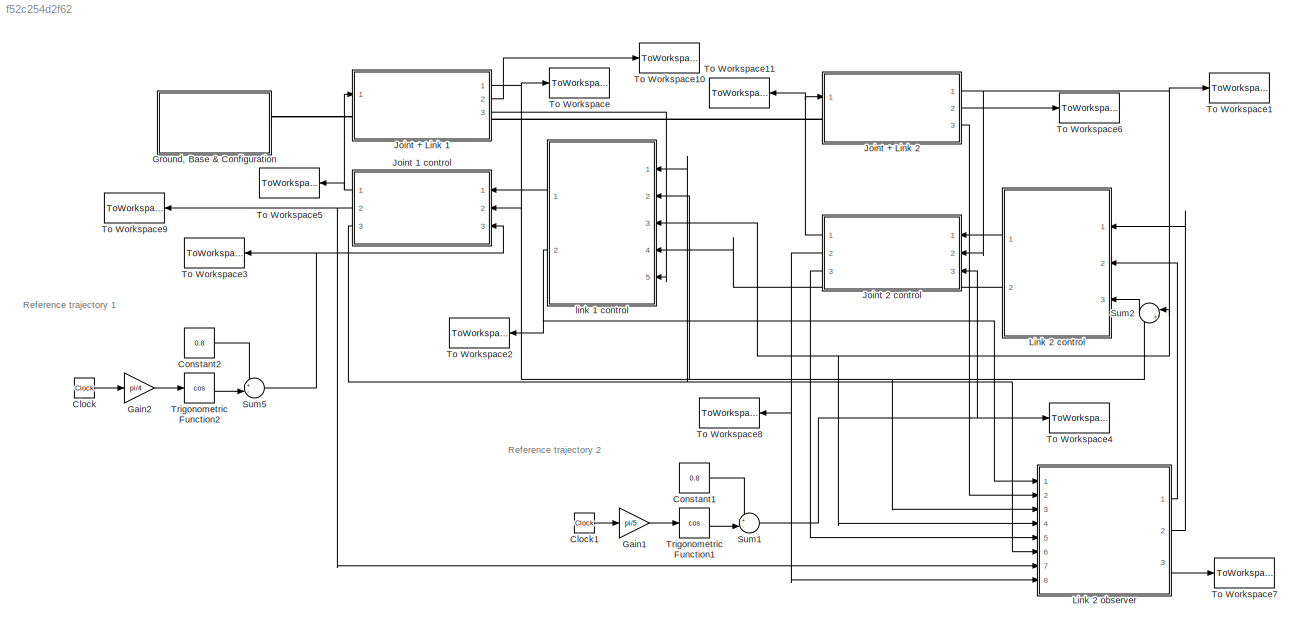
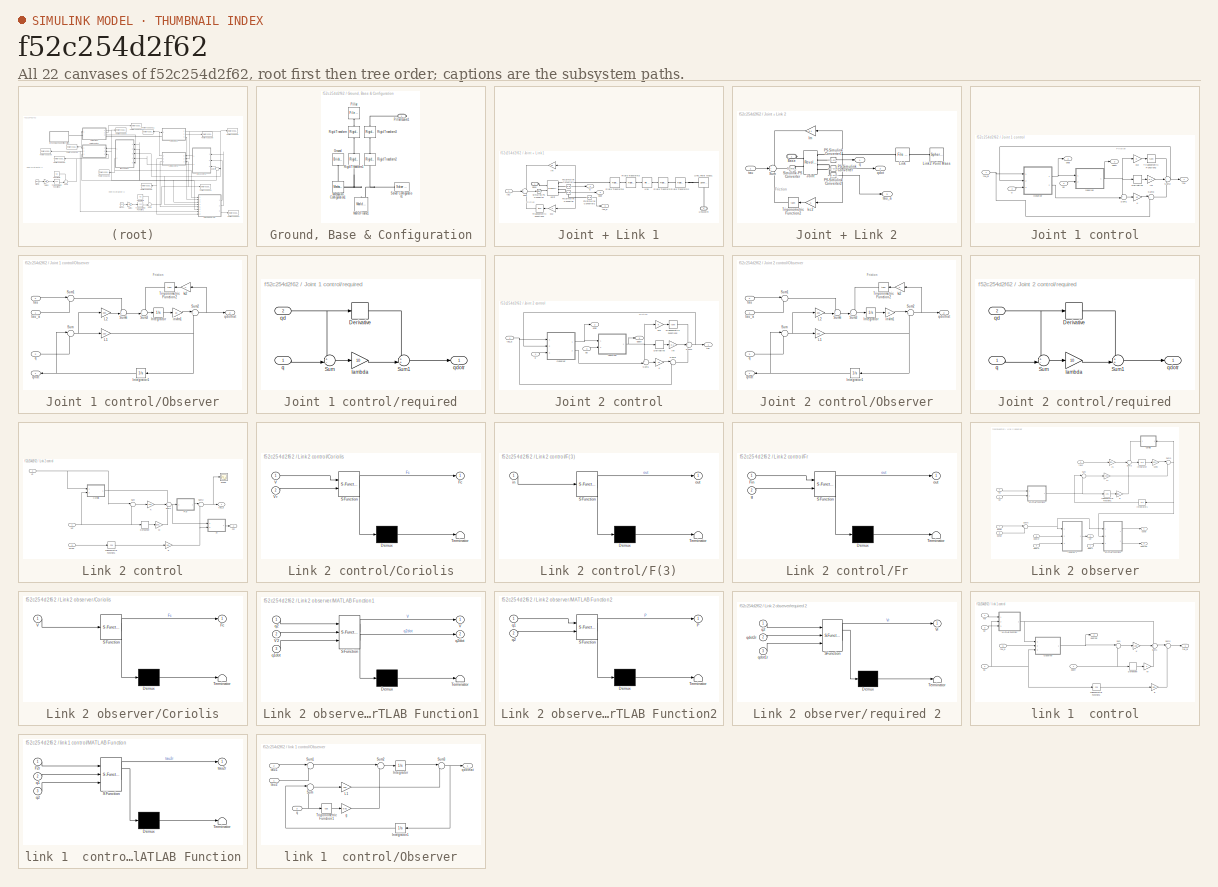
[diagram: thumbnail index - all 22 canvases of the model, root first then tree order]
MODEL slx_f52c254d2f62
KIND model
CONFIG AbsTol = 1e-5
CONFIG EnableMultiTasking = off
CONFIG FixedStep = 0.001
CONFIG MaxStep = auto
CONFIG MinStep = auto
CONFIG RelTol = 1e-5
CONFIG SampleTimeConstraint = Unconstrained
CONFIG SolverName = ode45
CONFIG StartTime = 0.0
CONFIG StopTime = 20
BLOCK [Clock] Clock
BLOCK [Clock] Clock1
BLOCK [Constant] Constant1
  Value = 0.8
BLOCK [Constant] Constant2
  Value = 0.8
BLOCK [Gain] Gain1
  Gain = pi/5
BLOCK [Gain] Gain2
  Gain = pi/4
BLOCK [SubSystem] Ground, Base & Configuration
  Ports = [0, 0, 0, 0, 0, 0, 1]
  RequestExecContextInheritance = off
BLOCK [Reference] Ground, Base & Configuration/Ground  REF=sm_lib/Body Elements/Brick Solid
  NameLocation = left
  Ports = [0, 0, 0, 0, 0, 0, 1]
  SourceBlock = sm_lib/Body Elements/Brick Solid
  SourceProductBaseCode = MS
  SourceType = Brick Solid
BLOCK [Reference] Ground, Base & Configuration/Mechanism Configuration1  REF=sm_lib/Utilities/Mechanism
Configuration
  NameLocation = top
  Ports = [0, 0, 0, 0, 0, 0, 1]
  SourceBlock = sm_lib/Utilities/Mechanism\nConfiguration
  SourceProductBaseCode = MS
  SourceType = Mechanism\nConfiguration
BLOCK [Reference] Ground, Base & Configuration/Pillar  REF=sm_lib/Body Elements/File Solid
  NameLocation = left
  Ports = [0, 0, 0, 0, 0, 0, 1]
  SourceBlock = sm_lib/Body Elements/File Solid
  SourceProductBaseCode = MS
  SourceType = File Solid
BLOCK [PMIOPort] Ground, Base & Configuration/PillartoJoint1
  Side = Right
BLOCK [Reference] Ground, Base & Configuration/Rigid Transform  REF=sm_lib/Frames and
Transforms/Rigid
Transform
  NameLocation = right
  Ports = [0, 0, 0, 0, 0, 1, 1]
  SourceBlock = sm_lib/Frames and\nTransforms/Rigid\nTransform
  SourceProductBaseCode = MS
  SourceType = Rigid\nTransform
BLOCK [Reference] Ground, Base & Configuration/Rigid Transform1  REF=sm_lib/Frames and
Transforms/Rigid
Transform
  NameLocation = right
  Ports = [0, 0, 0, 0, 0, 1, 1]
  SourceBlock = sm_lib/Frames and\nTransforms/Rigid\nTransform
  SourceProductBaseCode = MS
  SourceType = Rigid\nTransform
BLOCK [Reference] Ground, Base & Configuration/Rigid Transform2  REF=sm_lib/Frames and
Transforms/Rigid
Transform
  NameLocation = right
  Ports = [0, 0, 0, 0, 0, 1, 1]
  SourceBlock = sm_lib/Frames and\nTransforms/Rigid\nTransform
  SourceProductBaseCode = MS
  SourceType = Rigid\nTransform
BLOCK [Reference] Ground, Base & Configuration/Rigid Transform3  REF=sm_lib/Frames and
Transforms/Rigid
Transform
  NameLocation = right
  Ports = [0, 0, 0, 0, 0, 1, 1]
  SourceBlock = sm_lib/Frames and\nTransforms/Rigid\nTransform
  SourceProductBaseCode = MS
  SourceType = Rigid\nTransform
BLOCK [Reference] Ground, Base & Configuration/Solver Configuration1  REF=nesl_utility/Solver
Configuration
  NameLocation = top
  Ports = [0, 0, 0, 0, 0, 0, 1]
  SourceBlock = nesl_utility/Solver\nConfiguration
  SourceProductBaseCode = SS
  SourceType = Solver\nConfiguration
BLOCK [Reference] Ground, Base & Configuration/World Frame1  REF=sm_lib/Frames and
Transforms/World Frame
  NameLocation = right
  Ports = [0, 0, 0, 0, 0, 0, 1]
  SourceBlock = sm_lib/Frames and\nTransforms/World Frame
  SourceProductBaseCode = MS
  SourceType = World Frame
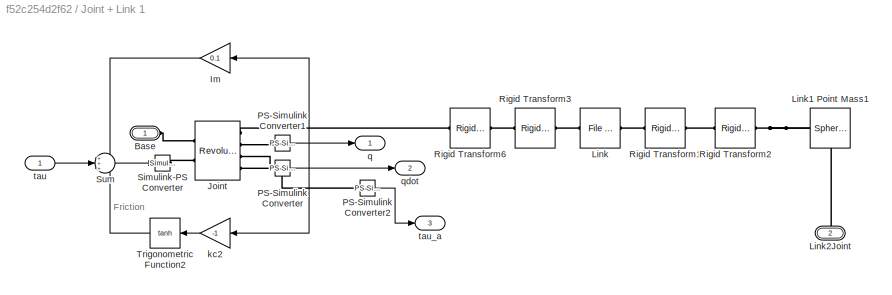
BLOCK [SubSystem] Joint + Link 1
  NameLocation = top
  Ports = [1, 3, 0, 0, 0, 1, 1]
  RequestExecContextInheritance = off
BLOCK [PMIOPort] Joint + Link 1/Base
  NameLocation = top
  Side = Left
BLOCK [Gain] Joint + Link 1/Im
  Gain = 0.1
BLOCK [Reference] Joint + Link 1/Joint  REF=sm_lib/Joints/Revolute Joint
  Ports = [0, 0, 0, 0, 0, 2, 4]
  SourceBlock = sm_lib/Joints/Revolute Joint
  SourceProductBaseCode = MS
  SourceType = Revolute Joint
BLOCK [Reference] Joint + Link 1/Link  REF=sm_lib/Body Elements/File Solid
  NameLocation = top
  Ports = [0, 0, 0, 0, 0, 1, 1]
  SourceBlock = sm_lib/Body Elements/File Solid
  SourceProductBaseCode = MS
  SourceType = File Solid
BLOCK [Reference] Joint + Link 1/Link1 Point Mass1  REF=sm_lib/Body Elements/Spherical Solid
  Ports = [0, 0, 0, 0, 0, 0, 1]
  SourceBlock = sm_lib/Body Elements/Spherical Solid
  SourceProductBaseCode = MS
  SourceType = Spherical Solid
BLOCK [PMIOPort] Joint + Link 1/Link2Joint
  Port = 2
  Side = Right
BLOCK [Reference] Joint + Link 1/PS-Simulink Converter  REF=nesl_utility/PS-Simulink
Converter
  Ports = [0, 1, 0, 0, 0, 1]
  SourceBlock = nesl_utility/PS-Simulink\nConverter
  SourceProductBaseCode = SS
  SourceType = PS-Simulink\nConverter
BLOCK [Reference] Joint + Link 1/PS-Simulink Converter1  REF=nesl_utility/PS-Simulink
Converter
  Ports = [0, 1, 0, 0, 0, 1]
  SourceBlock = nesl_utility/PS-Simulink\nConverter
  SourceProductBaseCode = SS
  SourceType = PS-Simulink\nConverter
BLOCK [Reference] Joint + Link 1/PS-Simulink Converter2  REF=nesl_utility/PS-Simulink
Converter
  Ports = [0, 1, 0, 0, 0, 1]
  SourceBlock = nesl_utility/PS-Simulink\nConverter
  SourceProductBaseCode = SS
  SourceType = PS-Simulink\nConverter
BLOCK [Reference] Joint + Link 1/Rigid Transform1  REF=sm_lib/Frames and
Transforms/Rigid
Transform
  NameLocation = top
  Ports = [0, 0, 0, 0, 0, 1, 1]
  SourceBlock = sm_lib/Frames and\nTransforms/Rigid\nTransform
  SourceProductBaseCode = MS
  SourceType = Rigid\nTransform
BLOCK [Reference] Joint + Link 1/Rigid Transform2  REF=sm_lib/Frames and
Transforms/Rigid
Transform
  Ports = [0, 0, 0, 0, 0, 1, 1]
  SourceBlock = sm_lib/Frames and\nTransforms/Rigid\nTransform
  SourceProductBaseCode = MS
  SourceType = Rigid\nTransform
BLOCK [Reference] Joint + Link 1/Rigid Transform3  REF=sm_lib/Frames and
Transforms/Rigid
Transform
  NameLocation = top
  Ports = [0, 0, 0, 0, 0, 1, 1]
  SourceBlock = sm_lib/Frames and\nTransforms/Rigid\nTransform
  SourceProductBaseCode = MS
  SourceType = Rigid\nTransform
BLOCK [Reference] Joint + Link 1/Rigid Transform6  REF=sm_lib/Frames and
Transforms/Rigid
Transform
  Ports = [0, 0, 0, 0, 0, 1, 1]
  SourceBlock = sm_lib/Frames and\nTransforms/Rigid\nTransform
  SourceProductBaseCode = MS
  SourceType = Rigid\nTransform
BLOCK [Reference] Joint + Link 1/Simulink-PS Converter  REF=nesl_utility/Simulink-PS
Converter
  Ports = [1, 0, 0, 0, 0, 0, 1]
  SourceBlock = nesl_utility/Simulink-PS\nConverter
  SourceProductBaseCode = SS
  SourceType = Simulink-PS\nConverter
BLOCK [Sum] Joint + Link 1/Sum
  Inputs = +++
  Ports = [3, 1]
BLOCK [Trigonometry] Joint + Link 1/Trigonometric Function2
  Operator = tanh
  Ports = [1, 1]
BLOCK [Gain] Joint + Link 1/kc2
  Gain = -1
BLOCK [Outport] Joint + Link 1/q
BLOCK [Outport] Joint + Link 1/qdot
  Port = 2
BLOCK [Inport] Joint + Link 1/tau
BLOCK [Outport] Joint + Link 1/tau_a
  Port = 3
BLOCK [SubSystem] Joint + Link 2
  NameLocation = top
  Ports = [1, 3, 0, 0, 0, 1]
  RequestExecContextInheritance = off
BLOCK [PMIOPort] Joint + Link 2/Base
  NameLocation = top
  Side = Left
BLOCK [Gain] Joint + Link 2/Im
  Gain = 0.1
BLOCK [Reference] Joint + Link 2/Joint  REF=sm_lib/Joints/Revolute Joint
  Ports = [0, 0, 0, 0, 0, 2, 4]
  SourceBlock = sm_lib/Joints/Revolute Joint
  SourceProductBaseCode = MS
  SourceType = Revolute Joint
BLOCK [Reference] Joint + Link 2/Link  REF=sm_lib/Body Elements/File Solid
  Ports = [0, 0, 0, 0, 0, 1, 1]
  SourceBlock = sm_lib/Body Elements/File Solid
  SourceProductBaseCode = MS
  SourceType = File Solid
BLOCK [Reference] Joint + Link 2/Link2 Point Mass  REF=sm_lib/Body Elements/Spherical Solid
  NameLocation = top
  Ports = [0, 0, 0, 0, 0, 0, 1]
  SourceBlock = sm_lib/Body Elements/Spherical Solid
  SourceProductBaseCode = MS
  SourceType = Spherical Solid
BLOCK [Reference] Joint + Link 2/PS-Simulink Converter  REF=nesl_utility/PS-Simulink
Converter
  Ports = [0, 1, 0, 0, 0, 1]
  SourceBlock = nesl_utility/PS-Simulink\nConverter
  SourceProductBaseCode = SS
  SourceType = PS-Simulink\nConverter
BLOCK [Reference] Joint + Link 2/PS-Simulink Converter1  REF=nesl_utility/PS-Simulink
Converter
  Ports = [0, 1, 0, 0, 0, 1]
  SourceBlock = nesl_utility/PS-Simulink\nConverter
  SourceProductBaseCode = SS
  SourceType = PS-Simulink\nConverter
BLOCK [Reference] Joint + Link 2/PS-Simulink Converter2  REF=nesl_utility/PS-Simulink
Converter
  Ports = [0, 1, 0, 0, 0, 1]
  SourceBlock = nesl_utility/PS-Simulink\nConverter
  SourceProductBaseCode = SS
  SourceType = PS-Simulink\nConverter
BLOCK [Reference] Joint + Link 2/Simulink-PS Converter  REF=nesl_utility/Simulink-PS
Converter
  Ports = [1, 0, 0, 0, 0, 0, 1]
  SourceBlock = nesl_utility/Simulink-PS\nConverter
  SourceProductBaseCode = SS
  SourceType = Simulink-PS\nConverter
BLOCK [Sum] Joint + Link 2/Sum
  Inputs = +++
  Ports = [3, 1]
BLOCK [Trigonometry] Joint + Link 2/Trigonometric Function2
  Operator = tanh
  Ports = [1, 1]
BLOCK [Gain] Joint + Link 2/kc2
  Gain = -1
BLOCK [Outport] Joint + Link 2/q
BLOCK [Outport] Joint + Link 2/qdot
  Port = 2
BLOCK [Inport] Joint + Link 2/tau
BLOCK [Outport] Joint + Link 2/tau_a
  Port = 3
BLOCK [SubSystem] Joint 1 control
  NameLocation = top
  Ports = [3, 3]
  RequestExecContextInheritance = off
BLOCK [Derivative] Joint 1 control/Derivative
BLOCK [Gain] Joint 1 control/Im
  Gain = 0.1
BLOCK [Gain] Joint 1 control/K
  Gain = 10
BLOCK [SubSystem] Joint 1 control/Observer
  Ports = [3, 2]
  RequestExecContextInheritance = off
BLOCK [Integrator] Joint 1 control/Observer/Integrator
  Ports = [1, 1]
BLOCK [Integrator] Joint 1 control/Observer/Integrator1
  Ports = [1, 1]
BLOCK [Gain] Joint 1 control/Observer/L1
  Gain = 210
BLOCK [Gain] Joint 1 control/Observer/L2
  Gain = 200
BLOCK [Sum] Joint 1 control/Observer/Sum
  Inputs = |-+
  Ports = [2, 1]
BLOCK [Sum] Joint 1 control/Observer/Sum1
  Inputs = |+-
  Ports = [2, 1]
BLOCK [Sum] Joint 1 control/Observer/Sum2
  Inputs = |++
  Ports = [2, 1]
BLOCK [Sum] Joint 1 control/Observer/Sum3
  Inputs = -+|
  Ports = [2, 1]
BLOCK [Sum] Joint 1 control/Observer/Sum6
  Inputs = ++|
  Ports = [2, 1]
BLOCK [Trigonometry] Joint 1 control/Observer/Trigonometric Function2
  Operator = tanh
  Ports = [1, 1]
BLOCK [Gain] Joint 1 control/Observer/invIm1
  Gain = 10
BLOCK [Gain] Joint 1 control/Observer/kc2
  Gain = -1
BLOCK [Inport] Joint 1 control/Observer/q
  Port = 3
BLOCK [Outport] Joint 1 control/Observer/qdothat
  Port = 2
  VectorParamsAs1DForOutWhenUnconnected = off
BLOCK [Outport] Joint 1 control/Observer/qhat
  VectorParamsAs1DForOutWhenUnconnected = off
BLOCK [Inport] Joint 1 control/Observer/tau
  Port = 2
BLOCK [Inport] Joint 1 control/Observer/tau_a
BLOCK [Sum] Joint 1 control/Sum1
  Inputs = +-|
  Ports = [2, 1]
BLOCK [Sum] Joint 1 control/Sum2
  Inputs = +++
  Ports = [3, 1]
BLOCK [Sum] Joint 1 control/Sum3
  Inputs = |++
  Ports = [2, 1]
BLOCK [Trigonometry] Joint 1 control/Trigonometric Function2
  Operator = tanh
  Ports = [1, 1]
BLOCK [Gain] Joint 1 control/kc2
BLOCK [Inport] Joint 1 control/q
  Port = 2
BLOCK [Inport] Joint 1 control/qd
  Port = 3
BLOCK [Outport] Joint 1 control/qdotr
  Port = 3
BLOCK [Outport] Joint 1 control/qhat
  Port = 2
BLOCK [SubSystem] Joint 1 control/required
  Ports = [2, 1]
  RequestExecContextInheritance = off
BLOCK [Derivative] Joint 1 control/required/Derivative
BLOCK [Sum] Joint 1 control/required/Sum
  Inputs = +-|
  Ports = [2, 1]
BLOCK [Sum] Joint 1 control/required/Sum1
  Inputs = ++|
  Ports = [2, 1]
BLOCK [Gain] Joint 1 control/required/lambda
  Gain = 10
BLOCK [Inport] Joint 1 control/required/q
BLOCK [Inport] Joint 1 control/required/qd
  Port = 2
BLOCK [Outport] Joint 1 control/required/qdotr
  VectorParamsAs1DForOutWhenUnconnected = off
BLOCK [Outport] Joint 1 control/tau
BLOCK [Inport] Joint 1 control/tau_ar
BLOCK [SubSystem] Joint 2 control
  NameLocation = top
  Ports = [3, 3]
  RequestExecContextInheritance = off
BLOCK [Derivative] Joint 2 control/Derivative
BLOCK [Gain] Joint 2 control/Im
  Gain = 0.1
BLOCK [Gain] Joint 2 control/K
  Gain = 10
BLOCK [SubSystem] Joint 2 control/Observer
  Ports = [3, 2]
  RequestExecContextInheritance = off
BLOCK [Integrator] Joint 2 control/Observer/Integrator
  Ports = [1, 1]
BLOCK [Integrator] Joint 2 control/Observer/Integrator1
  Ports = [1, 1]
BLOCK [Gain] Joint 2 control/Observer/L1
  Gain = 210
BLOCK [Gain] Joint 2 control/Observer/L2
  Gain = 200
BLOCK [Sum] Joint 2 control/Observer/Sum
  Inputs = |-+
  Ports = [2, 1]
BLOCK [Sum] Joint 2 control/Observer/Sum1
  Inputs = |+-
  Ports = [2, 1]
BLOCK [Sum] Joint 2 control/Observer/Sum2
  Inputs = |++
  Ports = [2, 1]
BLOCK [Sum] Joint 2 control/Observer/Sum3
  Inputs = -+|
  Ports = [2, 1]
BLOCK [Sum] Joint 2 control/Observer/Sum6
  Inputs = ++|
  Ports = [2, 1]
BLOCK [Trigonometry] Joint 2 control/Observer/Trigonometric Function2
  Operator = tanh
  Ports = [1, 1]
BLOCK [Gain] Joint 2 control/Observer/invIm1
  Gain = 10
BLOCK [Gain] Joint 2 control/Observer/kc2
  Gain = -1
BLOCK [Inport] Joint 2 control/Observer/q
  Port = 3
BLOCK [Outport] Joint 2 control/Observer/qdothat
  Port = 2
  VectorParamsAs1DForOutWhenUnconnected = off
BLOCK [Outport] Joint 2 control/Observer/qhat
  VectorParamsAs1DForOutWhenUnconnected = off
BLOCK [Inport] Joint 2 control/Observer/tau
  Port = 2
BLOCK [Inport] Joint 2 control/Observer/tau_a
BLOCK [Sum] Joint 2 control/Sum1
  Inputs = +-|
  Ports = [2, 1]
BLOCK [Sum] Joint 2 control/Sum2
  Inputs = +++
  Ports = [3, 1]
BLOCK [Sum] Joint 2 control/Sum3
  Inputs = |++
  Ports = [2, 1]
BLOCK [Trigonometry] Joint 2 control/Trigonometric Function2
  Operator = tanh
  Ports = [1, 1]
BLOCK [Gain] Joint 2 control/kc2
BLOCK [Inport] Joint 2 control/q
  Port = 2
BLOCK [Inport] Joint 2 control/qd
  Port = 3
BLOCK [Outport] Joint 2 control/qdotr
  Port = 3
BLOCK [Outport] Joint 2 control/qhat
  Port = 2
BLOCK [SubSystem] Joint 2 control/required
  Ports = [2, 1]
  RequestExecContextInheritance = off
BLOCK [Derivative] Joint 2 control/required/Derivative
BLOCK [Sum] Joint 2 control/required/Sum
  Inputs = +-|
  Ports = [2, 1]
BLOCK [Sum] Joint 2 control/required/Sum1
  Inputs = ++|
  Ports = [2, 1]
BLOCK [Gain] Joint 2 control/required/lambda
  Gain = 10
BLOCK [Inport] Joint 2 control/required/q
BLOCK [Inport] Joint 2 control/required/qd
  Port = 2
BLOCK [Outport] Joint 2 control/required/qdotr
  VectorParamsAs1DForOutWhenUnconnected = off
BLOCK [Outport] Joint 2 control/tau
BLOCK [Inport] Joint 2 control/tau_a
BLOCK [SubSystem] Link 2 control
  Ports = [3, 2]
  RequestExecContextInheritance = off
BLOCK [SubSystem] Link 2 control/Coriolis
  ErrorFcn = Stateflow.Translate.translate
  PermitHierarchicalResolution = ExplicitOnly
  Ports = [2, 1]
  RequestExecContextInheritance = off
  SFBlockType = MATLAB Function
  TreatAsAtomicUnit = on
BLOCK [Demux] Link 2 control/Coriolis/ Demux 
  Outputs = 1
  Ports = [1, 1]
BLOCK [S-Function] Link 2 control/Coriolis/ SFunction 
  EnableBusSupport = on
  FunctionName = sf_sfun
  PortCounts = [2 2]
  Ports = [2, 2]
  SFcnIsStateOwnerBlock = off
  SFunctionDeploymentMode = off
  Tag = Stateflow S-Function 4
BLOCK [Terminator] Link 2 control/Coriolis/ Terminator 
BLOCK [Outport] Link 2 control/Coriolis/Fc
  VectorParamsAs1DForOutWhenUnconnected = off
BLOCK [Inport] Link 2 control/Coriolis/V
BLOCK [Inport] Link 2 control/Coriolis/Vr
  Port = 2
BLOCK [Derivative] Link 2 control/Derivative
BLOCK [SubSystem] Link 2 control/F(3)
  ErrorFcn = Stateflow.Translate.translate
  PermitHierarchicalResolution = ExplicitOnly
  Ports = [1, 1]
  RequestExecContextInheritance = off
  SFBlockType = MATLAB Function
  TreatAsAtomicUnit = on
BLOCK [Demux] Link 2 control/F(3)/ Demux 
  Outputs = 1
  Ports = [1, 1]
BLOCK [S-Function] Link 2 control/F(3)/ SFunction 
  EnableBusSupport = on
  FunctionName = sf_sfun
  PortCounts = [1 2]
  Ports = [1, 2]
  SFcnIsStateOwnerBlock = off
  SFunctionDeploymentMode = off
  Tag = Stateflow S-Function 6
BLOCK [Terminator] Link 2 control/F(3)/ Terminator 
BLOCK [Inport] Link 2 control/F(3)/in
BLOCK [Outport] Link 2 control/F(3)/out
  VectorParamsAs1DForOutWhenUnconnected = off
BLOCK [Outport] Link 2 control/F2r
  Port = 2
  VectorParamsAs1DForOutWhenUnconnected = off
BLOCK [SubSystem] Link 2 control/Fr
  ErrorFcn = Stateflow.Translate.translate
  PermitHierarchicalResolution = ExplicitOnly
  Ports = [2, 1]
  RequestExecContextInheritance = off
  SFBlockType = MATLAB Function
  TreatAsAtomicUnit = on
BLOCK [Demux] Link 2 control/Fr/ Demux 
  Outputs = 1
  Ports = [1, 1]
BLOCK [S-Function] Link 2 control/Fr/ SFunction 
  EnableBusSupport = on
  FunctionName = sf_sfun
  PortCounts = [2 2]
  Ports = [2, 2]
  SFcnIsStateOwnerBlock = off
  SFunctionDeploymentMode = off
  Tag = Stateflow S-Function 2
BLOCK [Terminator] Link 2 control/Fr/ Terminator 
BLOCK [Inport] Link 2 control/Fr/Fin
BLOCK [Inport] Link 2 control/Fr/g
  Port = 2
BLOCK [Outport] Link 2 control/Fr/out
  VectorParamsAs1DForOutWhenUnconnected = off
BLOCK [Gain] Link 2 control/K
  Gain = 100
BLOCK [Gain] Link 2 control/M
  Gain = [1 0 0;0 1 1;0 1 2]
  Multiplication = Matrix(K*u) (u vector)
BLOCK [Scope] Link 2 control/Scope
  Floating = off
  NumInputPorts = 1
  Ports = [1]
  ScopeSpecificationString = Simulink.scopes.TimeScopeBlockCfg('CurrentConfiguration', extmgr.ConfigurationSet(extmgr.Configuration('Core','General UI',true),extmgr.Configuration('Core','Source UI',true),extmgr.Configuration('Sources','WiredSimulink',true,'DataLoggingVariableName','ScopeData3'),extmgr.Configuration('Visuals','Time Domain',true,'SerializedDisplays',{struct('MinYLimReal','-52.14061','MaxYLimReal','171.96337','Y...<+1403ch>
BLOCK [Sum] Link 2 control/Sum
  Inputs = |-+
  Ports = [2, 1]
BLOCK [Sum] Link 2 control/Sum1
  Inputs = +++
  Ports = [3, 1]
BLOCK [Sum] Link 2 control/Sum2
  Inputs = |++
  Ports = [2, 1]
BLOCK [Trigonometry] Link 2 control/Trigonometric Function1
  Operator = cos
  Ports = [1, 1]
BLOCK [Inport] Link 2 control/V2
  Port = 2
BLOCK [Inport] Link 2 control/V2r
BLOCK [Gain] Link 2 control/g
  Gain = 9.81
BLOCK [Inport] Link 2 control/q1+q2
  Port = 3
BLOCK [Outport] Link 2 control/tau_a
  VectorParamsAs1DForOutWhenUnconnected = off
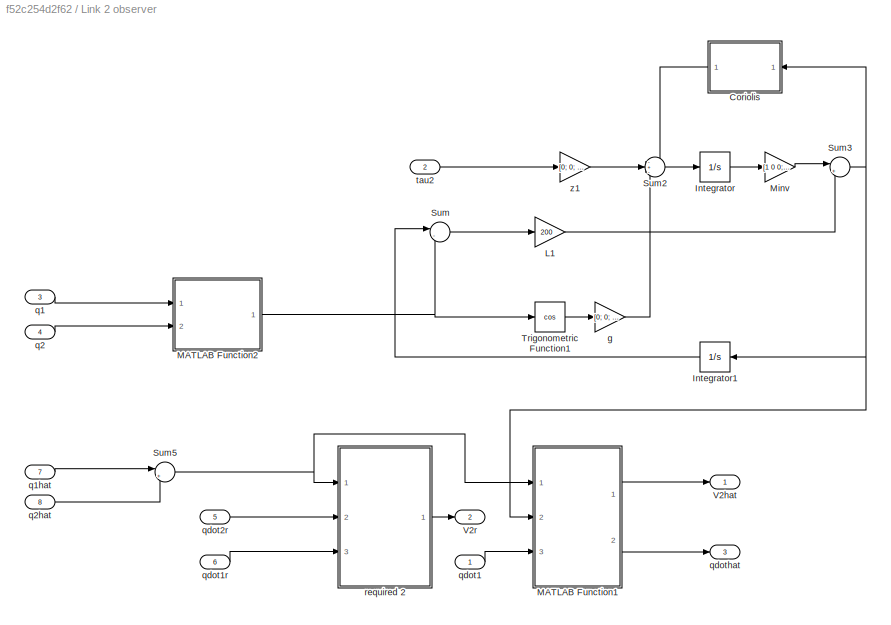
BLOCK [SubSystem] Link 2 observer
  Ports = [8, 3]
  RequestExecContextInheritance = off
BLOCK [SubSystem] Link 2 observer/Coriolis
  ErrorFcn = Stateflow.Translate.translate
  PermitHierarchicalResolution = ExplicitOnly
  Ports = [1, 1]
  RequestExecContextInheritance = off
  SFBlockType = MATLAB Function
  TreatAsAtomicUnit = on
BLOCK [Demux] Link 2 observer/Coriolis/ Demux 
  Outputs = 1
  Ports = [1, 1]
BLOCK [S-Function] Link 2 observer/Coriolis/ SFunction 
  EnableBusSupport = on
  FunctionName = sf_sfun
  PortCounts = [1 2]
  Ports = [1, 2]
  SFcnIsStateOwnerBlock = off
  SFunctionDeploymentMode = off
  Tag = Stateflow S-Function 3
BLOCK [Terminator] Link 2 observer/Coriolis/ Terminator 
BLOCK [Outport] Link 2 observer/Coriolis/Fc
  VectorParamsAs1DForOutWhenUnconnected = off
BLOCK [Inport] Link 2 observer/Coriolis/V
BLOCK [Integrator] Link 2 observer/Integrator
  Ports = [1, 1]
BLOCK [Integrator] Link 2 observer/Integrator1
  Ports = [1, 1]
BLOCK [Gain] Link 2 observer/L1
  Gain = 200
BLOCK [SubSystem] Link 2 observer/MATLAB Function1
  ErrorFcn = Stateflow.Translate.translate
  PermitHierarchicalResolution = ExplicitOnly
  Ports = [3, 2]
  RequestExecContextInheritance = off
  SFBlockType = MATLAB Function
  TreatAsAtomicUnit = on
BLOCK [Demux] Link 2 observer/MATLAB Function1/ Demux 
  Outputs = 1
  Ports = [1, 1]
BLOCK [S-Function] Link 2 observer/MATLAB Function1/ SFunction 
  EnableBusSupport = on
  FunctionName = sf_sfun
  PortCounts = [3 3]
  Ports = [3, 3]
  SFcnIsStateOwnerBlock = off
  SFunctionDeploymentMode = off
  Tag = Stateflow S-Function 5
BLOCK [Terminator] Link 2 observer/MATLAB Function1/ Terminator 
BLOCK [Outport] Link 2 observer/MATLAB Function1/V
  VectorParamsAs1DForOutWhenUnconnected = off
BLOCK [Inport] Link 2 observer/MATLAB Function1/V2
  Port = 2
BLOCK [Inport] Link 2 observer/MATLAB Function1/q1dot
  Port = 3
BLOCK [Inport] Link 2 observer/MATLAB Function1/q2
BLOCK [Outport] Link 2 observer/MATLAB Function1/q2dot
  Port = 2
BLOCK [SubSystem] Link 2 observer/MATLAB Function2
  ErrorFcn = Stateflow.Translate.translate
  PermitHierarchicalResolution = ExplicitOnly
  Ports = [2, 1]
  RequestExecContextInheritance = off
  SFBlockType = MATLAB Function
  TreatAsAtomicUnit = on
BLOCK [Demux] Link 2 observer/MATLAB Function2/ Demux 
  Outputs = 1
  Ports = [1, 1]
BLOCK [S-Function] Link 2 observer/MATLAB Function2/ SFunction 
  EnableBusSupport = on
  FunctionName = sf_sfun
  PortCounts = [2 2]
  Ports = [2, 2]
  SFcnIsStateOwnerBlock = off
  SFunctionDeploymentMode = off
  Tag = Stateflow S-Function 1
BLOCK [Terminator] Link 2 observer/MATLAB Function2/ Terminator 
BLOCK [Outport] Link 2 observer/MATLAB Function2/P
  VectorParamsAs1DForOutWhenUnconnected = off
BLOCK [Inport] Link 2 observer/MATLAB Function2/q1
BLOCK [Inport] Link 2 observer/MATLAB Function2/q2
  Port = 2
BLOCK [Gain] Link 2 observer/Minv
  Gain = [1 0 0; 0 2 -1;0 -1 1]
  Multiplication = Matrix(K*u) (u vector)
BLOCK [Sum] Link 2 observer/Sum
  Inputs = |-+
  Ports = [2, 1]
BLOCK [Sum] Link 2 observer/Sum2
  Inputs = -+-
  Ports = [3, 1]
BLOCK [Sum] Link 2 observer/Sum3
  Inputs = |++
  Ports = [2, 1]
BLOCK [Sum] Link 2 observer/Sum5
  Inputs = |++
  Ports = [2, 1]
BLOCK [Trigonometry] Link 2 observer/Trigonometric Function1
  Operator = cos
  Ports = [1, 1]
BLOCK [Outport] Link 2 observer/V2hat
  VectorParamsAs1DForOutWhenUnconnected = off
BLOCK [Outport] Link 2 observer/V2r
  Port = 2
  VectorParamsAs1DForOutWhenUnconnected = off
BLOCK [Gain] Link 2 observer/g
  Gain = [0; 0; 9.81]
BLOCK [Inport] Link 2 observer/q1
  Port = 3
BLOCK [Inport] Link 2 observer/q1hat
  Port = 7
BLOCK [Inport] Link 2 observer/q2
  Port = 4
BLOCK [Inport] Link 2 observer/q2hat
  Port = 8
BLOCK [Inport] Link 2 observer/qdot1
BLOCK [Inport] Link 2 observer/qdot1r
  Port = 6
BLOCK [Inport] Link 2 observer/qdot2r
  Port = 5
BLOCK [Outport] Link 2 observer/qdothat
  Port = 3
  VectorParamsAs1DForOutWhenUnconnected = off
BLOCK [SubSystem] Link 2 observer/required 2
  ErrorFcn = Stateflow.Translate.translate
  PermitHierarchicalResolution = ExplicitOnly
  Ports = [3, 1]
  RequestExecContextInheritance = off
  SFBlockType = MATLAB Function
  TreatAsAtomicUnit = on
BLOCK [Demux] Link 2 observer/required 2/ Demux 
  Outputs = 1
  Ports = [1, 1]
BLOCK [S-Function] Link 2 observer/required 2/ SFunction 
  EnableBusSupport = on
  FunctionName = sf_sfun
  PortCounts = [3 2]
  Ports = [3, 2]
  SFcnIsStateOwnerBlock = off
  SFunctionDeploymentMode = off
  Tag = Stateflow S-Function 8
BLOCK [Terminator] Link 2 observer/required 2/ Terminator 
BLOCK [Outport] Link 2 observer/required 2/Vr
  VectorParamsAs1DForOutWhenUnconnected = off
BLOCK [Inport] Link 2 observer/required 2/q2
BLOCK [Inport] Link 2 observer/required 2/qdot1r
  Port = 3
BLOCK [Inport] Link 2 observer/required 2/qdot2r
  Port = 2
BLOCK [Inport] Link 2 observer/tau2
  Port = 2
BLOCK [Gain] Link 2 observer/z1
  Gain = [0; 0; 1]
BLOCK [Sum] Sum1
  Inputs = +-|
  Ports = [2, 1]
BLOCK [Sum] Sum2
  Inputs = |++
  Ports = [2, 1]
BLOCK [Sum] Sum5
  Inputs = +-|
  Ports = [2, 1]
BLOCK [ToWorkspace] To Workspace
  FixptAsFi = on
  MaxDataPoints = inf
  Ports = [1]
  SampleTime = -1
  SaveFormat = Timeseries
  VariableName = q1
BLOCK [ToWorkspace] To Workspace1
  FixptAsFi = on
  MaxDataPoints = inf
  Ports = [1]
  SampleTime = -1
  SaveFormat = Timeseries
  VariableName = q2
BLOCK [ToWorkspace] To Workspace10
  FixptAsFi = on
  MaxDataPoints = inf
  Ports = [1]
  SampleTime = -1
  SaveFormat = Timeseries
  VariableName = qdot1
BLOCK [ToWorkspace] To Workspace11
  FixptAsFi = on
  MaxDataPoints = inf
  Ports = [1]
  SampleTime = -1
  SaveFormat = Timeseries
  VariableName = tau2
BLOCK [ToWorkspace] To Workspace2
  FixptAsFi = on
  MaxDataPoints = inf
  Ports = [1]
  SampleTime = -1
  SaveFormat = Timeseries
  VariableName = q1dothat
BLOCK [ToWorkspace] To Workspace3
  FixptAsFi = on
  MaxDataPoints = inf
  Ports = [1]
  SampleTime = -1
  SaveFormat = Timeseries
  VariableName = q1d
BLOCK [ToWorkspace] To Workspace4
  FixptAsFi = on
  MaxDataPoints = inf
  Ports = [1]
  SampleTime = -1
  SaveFormat = Timeseries
  VariableName = q2d
BLOCK [ToWorkspace] To Workspace5
  FixptAsFi = on
  MaxDataPoints = inf
  Ports = [1]
  SampleTime = -1
  SaveFormat = Timeseries
  VariableName = tau1
BLOCK [ToWorkspace] To Workspace6
  FixptAsFi = on
  MaxDataPoints = inf
  Ports = [1]
  SampleTime = -1
  SaveFormat = Timeseries
  VariableName = qdot2
BLOCK [ToWorkspace] To Workspace7
  FixptAsFi = on
  MaxDataPoints = inf
  Ports = [1]
  SampleTime = -1
  SaveFormat = Timeseries
  VariableName = q2dothat
BLOCK [ToWorkspace] To Workspace8
  FixptAsFi = on
  MaxDataPoints = inf
  Ports = [1]
  SampleTime = -1
  SaveFormat = Timeseries
  VariableName = q2hat
BLOCK [ToWorkspace] To Workspace9
  FixptAsFi = on
  MaxDataPoints = inf
  Ports = [1]
  SampleTime = -1
  SaveFormat = Timeseries
  VariableName = q1hat
BLOCK [Trigonometry] Trigonometric Function1
  Operator = cos
  Ports = [1, 1]
BLOCK [Trigonometry] Trigonometric Function2
  Operator = cos
  Ports = [1, 1]
BLOCK [SubSystem] link 1  control
  Ports = [5, 2]
  RequestExecContextInheritance = off
BLOCK [Derivative] link 1  control/Derivative
BLOCK [Inport] link 1  control/F2r
  Port = 4
BLOCK [Gain] link 1  control/K
  Gain = 100
BLOCK [Gain] link 1  control/M
  Gain = 2
BLOCK [SubSystem] link 1  control/MATLAB Function
  ErrorFcn = Stateflow.Translate.translate
  PermitHierarchicalResolution = ExplicitOnly
  Ports = [3, 1]
  RequestExecContextInheritance = off
  SFBlockType = MATLAB Function
  TreatAsAtomicUnit = on
BLOCK [Demux] link 1  control/MATLAB Function/ Demux 
  Outputs = 1
  Ports = [1, 1]
BLOCK [S-Function] link 1  control/MATLAB Function/ SFunction 
  EnableBusSupport = on
  FunctionName = sf_sfun
  PortCounts = [3 2]
  Ports = [3, 2]
  SFcnIsStateOwnerBlock = off
  SFunctionDeploymentMode = off
  Tag = Stateflow S-Function 7
BLOCK [Terminator] link 1  control/MATLAB Function/ Terminator 
BLOCK [Inport] link 1  control/MATLAB Function/F2r
BLOCK [Inport] link 1  control/MATLAB Function/q1
  Port = 2
BLOCK [Inport] link 1  control/MATLAB Function/q2
  Port = 3
BLOCK [Outport] link 1  control/MATLAB Function/tau2r
  VectorParamsAs1DForOutWhenUnconnected = off
BLOCK [SubSystem] link 1  control/Observer
  Ports = [3, 1]
  RequestExecContextInheritance = off
BLOCK [Integrator] link 1  control/Observer/Integrator
  Ports = [1, 1]
BLOCK [Integrator] link 1  control/Observer/Integrator1
  Ports = [1, 1]
BLOCK [Gain] link 1  control/Observer/L1
  Gain = 200
BLOCK [Sum] link 1  control/Observer/Sum
  Inputs = |-+
  Ports = [2, 1]
BLOCK [Sum] link 1  control/Observer/Sum1
  Inputs = |+-
  Ports = [2, 1]
BLOCK [Sum] link 1  control/Observer/Sum2
  Inputs = |+-
  Ports = [2, 1]
BLOCK [Sum] link 1  control/Observer/Sum3
  Inputs = |++
  Ports = [2, 1]
BLOCK [Trigonometry] link 1  control/Observer/Trigonometric Function1
  Operator = cos
  Ports = [1, 1]
BLOCK [Gain] link 1  control/Observer/g
  Gain = 9.81
BLOCK [Inport] link 1  control/Observer/q
  Port = 3
BLOCK [Outport] link 1  control/Observer/qdothat
  VectorParamsAs1DForOutWhenUnconnected = off
BLOCK [Inport] link 1  control/Observer/tau1
  Port = 2
BLOCK [Inport] link 1  control/Observer/tau2
BLOCK [Sum] link 1  control/Sum
  Inputs = |-+
  Ports = [2, 1]
BLOCK [Sum] link 1  control/Sum1
  Inputs = +++
  Ports = [3, 1]
BLOCK [Sum] link 1  control/Sum2
  Inputs = |++
  Ports = [2, 1]
BLOCK [Trigonometry] link 1  control/Trigonometric Function1
  Operator = cos
  Ports = [1, 1]
BLOCK [Gain] link 1  control/g
  Gain = 9.81
BLOCK [Inport] link 1  control/q1
  Port = 2
BLOCK [Inport] link 1  control/q2
  Port = 3
BLOCK [Outport] link 1  control/qdothat
  Port = 2
  VectorParamsAs1DForOutWhenUnconnected = off
BLOCK [Inport] link 1  control/qdotr
BLOCK [Inport] link 1  control/tau_a
  Port = 5
BLOCK [Outport] link 1  control/tau_ar
  VectorParamsAs1DForOutWhenUnconnected = off
ANNOTATION (root): Reference trajectory 1
ANNOTATION (root): Reference trajectory 2
ANNOTATION Joint + Link 1: Friction
ANNOTATION Joint + Link 2: Friction
ANNOTATION Joint 1 control: Friction
ANNOTATION Joint 1 control/Observer: Friction
ANNOTATION Joint 2 control: Friction
ANNOTATION Joint 2 control/Observer: Friction
LINE Clock1:1 -> Gain1:1
LINE Clock:1 -> Gain2:1
LINE Constant1:1 -> Sum1:1
LINE Constant2:1 -> Sum5:1
LINE Gain1:1 -> Trigonometric Function1:1
LINE Gain2:1 -> Trigonometric Function2:1
LINE Joint + Link 1/Im:1 -> Joint + Link 1/Sum:1
LINE Joint + Link 1/PS-Simulink Converter1:1 -> Joint + Link 1/q:1
LINE Joint + Link 1/PS-Simulink Converter2:1 -> Joint + Link 1/tau_a:1
NET Joint + Link 1/PS-Simulink Converter:1 -> Joint + Link 1/Im:1, Joint + Link 1/kc2:1, Joint + Link 1/qdot:1
LINE Joint + Link 1/Sum:1 -> Joint + Link 1/Simulink-PS Converter:1
LINE Joint + Link 1/Trigonometric Function2:1 -> Joint + Link 1/Sum:3
LINE Joint + Link 1/kc2:1 -> Joint + Link 1/Trigonometric Function2:1
LINE Joint + Link 1/tau:1 -> Joint + Link 1/Sum:2
NET Joint + Link 1:1 -> Joint 1 control:2, Link 2 observer:3, Sum2:2, To Workspace:1, link 1  control:2
LINE Joint + Link 1:2 -> To Workspace10:1
LINE Joint + Link 1:3 -> link 1  control:5
LINE Joint + Link 2/Im:1 -> Joint + Link 2/Sum:1
LINE Joint + Link 2/PS-Simulink Converter1:1 -> Joint + Link 2/q:1
LINE Joint + Link 2/PS-Simulink Converter2:1 -> Joint + Link 2/tau_a:1
NET Joint + Link 2/PS-Simulink Converter:1 -> Joint + Link 2/Im:1, Joint + Link 2/kc2:1, Joint + Link 2/qdot:1
LINE Joint + Link 2/Sum:1 -> Joint + Link 2/Simulink-PS Converter:1
LINE Joint + Link 2/Trigonometric Function2:1 -> Joint + Link 2/Sum:3
LINE Joint + Link 2/kc2:1 -> Joint + Link 2/Trigonometric Function2:1
LINE Joint + Link 2/tau:1 -> Joint + Link 2/Sum:2
NET Joint + Link 2:1 -> Joint 2 control:2, Link 2 observer:4, Sum2:1, To Workspace1:1, link 1  control:3
LINE Joint + Link 2:2 -> To Workspace6:1
LINE Joint + Link 2:3 -> Link 2 observer:2
LINE Joint 1 control/Derivative:1 -> Joint 1 control/Im:1
LINE Joint 1 control/Im:1 -> Joint 1 control/Sum2:2
LINE Joint 1 control/K:1 -> Joint 1 control/Sum3:1
NET Joint 1 control/Observer/Integrator1:1 -> Joint 1 control/Observer/Sum:1, Joint 1 control/Observer/qhat:1
LINE Joint 1 control/Observer/Integrator:1 -> Joint 1 control/Observer/invIm1:1
NET Joint 1 control/Observer/L1:1 -> Joint 1 control/Observer/Integrator1:1, Joint 1 control/Observer/Sum2:2
LINE Joint 1 control/Observer/L2:1 -> Joint 1 control/Observer/Sum6:2
LINE Joint 1 control/Observer/Sum1:1 -> Joint 1 control/Observer/Sum6:1
NET Joint 1 control/Observer/Sum2:1 -> Joint 1 control/Observer/kc2:1, Joint 1 control/Observer/qdothat:1
LINE Joint 1 control/Observer/Sum3:1 -> Joint 1 control/Observer/Integrator:1
LINE Joint 1 control/Observer/Sum6:1 -> Joint 1 control/Observer/Sum3:2
NET Joint 1 control/Observer/Sum:1 -> Joint 1 control/Observer/L1:1, Joint 1 control/Observer/L2:1
LINE Joint 1 control/Observer/Trigonometric Function2:1 -> Joint 1 control/Observer/Sum3:1
LINE Joint 1 control/Observer/invIm1:1 -> Joint 1 control/Observer/Sum2:1
LINE Joint 1 control/Observer/kc2:1 -> Joint 1 control/Observer/Trigonometric Function2:1
LINE Joint 1 control/Observer/q:1 -> Joint 1 control/Observer/Sum:2
LINE Joint 1 control/Observer/tau:1 -> Joint 1 control/Observer/Sum1:1
LINE Joint 1 control/Observer/tau_a:1 -> Joint 1 control/Observer/Sum1:2
NET Joint 1 control/Observer:1 -> Joint 1 control/qhat:1, Joint 1 control/required:1
LINE Joint 1 control/Observer:2 -> Joint 1 control/Sum1:2
LINE Joint 1 control/Sum1:1 -> Joint 1 control/K:1
NET Joint 1 control/Sum2:1 -> Joint 1 control/Observer:2, Joint 1 control/tau:1
LINE Joint 1 control/Sum3:1 -> Joint 1 control/Sum2:3
LINE Joint 1 control/Trigonometric Function2:1 -> Joint 1 control/Sum2:1
LINE Joint 1 control/kc2:1 -> Joint 1 control/Trigonometric Function2:1
LINE Joint 1 control/q:1 -> Joint 1 control/Observer:3
LINE Joint 1 control/qd:1 -> Joint 1 control/required:2
LINE Joint 1 control/required/Derivative:1 -> Joint 1 control/required/Sum1:1
LINE Joint 1 control/required/Sum1:1 -> Joint 1 control/required/qdotr:1
LINE Joint 1 control/required/Sum:1 -> Joint 1 control/required/lambda:1
LINE Joint 1 control/required/lambda:1 -> Joint 1 control/required/Sum1:2
LINE Joint 1 control/required/q:1 -> Joint 1 control/required/Sum:2
NET Joint 1 control/required/qd:1 -> Joint 1 control/required/Derivative:1, Joint 1 control/required/Sum:1
NET Joint 1 control/required:1 -> Joint 1 control/Derivative:1, Joint 1 control/Sum1:1, Joint 1 control/kc2:1, Joint 1 control/qdotr:1
NET Joint 1 control/tau_ar:1 -> Joint 1 control/Observer:1, Joint 1 control/Sum3:2
NET Joint 1 control:1 -> Joint + Link 1:1, To Workspace5:1
NET Joint 1 control:2 -> Link 2 observer:7, To Workspace9:1
NET Joint 1 control:3 -> Link 2 observer:6, link 1  control:1
LINE Joint 2 control/Derivative:1 -> Joint 2 control/Im:1
LINE Joint 2 control/Im:1 -> Joint 2 control/Sum2:2
LINE Joint 2 control/K:1 -> Joint 2 control/Sum3:1
NET Joint 2 control/Observer/Integrator1:1 -> Joint 2 control/Observer/Sum:1, Joint 2 control/Observer/qhat:1
LINE Joint 2 control/Observer/Integrator:1 -> Joint 2 control/Observer/invIm1:1
NET Joint 2 control/Observer/L1:1 -> Joint 2 control/Observer/Integrator1:1, Joint 2 control/Observer/Sum2:2
LINE Joint 2 control/Observer/L2:1 -> Joint 2 control/Observer/Sum6:2
LINE Joint 2 control/Observer/Sum1:1 -> Joint 2 control/Observer/Sum6:1
NET Joint 2 control/Observer/Sum2:1 -> Joint 2 control/Observer/kc2:1, Joint 2 control/Observer/qdothat:1
LINE Joint 2 control/Observer/Sum3:1 -> Joint 2 control/Observer/Integrator:1
LINE Joint 2 control/Observer/Sum6:1 -> Joint 2 control/Observer/Sum3:2
NET Joint 2 control/Observer/Sum:1 -> Joint 2 control/Observer/L1:1, Joint 2 control/Observer/L2:1
LINE Joint 2 control/Observer/Trigonometric Function2:1 -> Joint 2 control/Observer/Sum3:1
LINE Joint 2 control/Observer/invIm1:1 -> Joint 2 control/Observer/Sum2:1
LINE Joint 2 control/Observer/kc2:1 -> Joint 2 control/Observer/Trigonometric Function2:1
LINE Joint 2 control/Observer/q:1 -> Joint 2 control/Observer/Sum:2
LINE Joint 2 control/Observer/tau:1 -> Joint 2 control/Observer/Sum1:1
LINE Joint 2 control/Observer/tau_a:1 -> Joint 2 control/Observer/Sum1:2
NET Joint 2 control/Observer:1 -> Joint 2 control/qhat:1, Joint 2 control/required:1
LINE Joint 2 control/Observer:2 -> Joint 2 control/Sum1:2
LINE Joint 2 control/Sum1:1 -> Joint 2 control/K:1
NET Joint 2 control/Sum2:1 -> Joint 2 control/Observer:2, Joint 2 control/tau:1
LINE Joint 2 control/Sum3:1 -> Joint 2 control/Sum2:3
LINE Joint 2 control/Trigonometric Function2:1 -> Joint 2 control/Sum2:1
LINE Joint 2 control/kc2:1 -> Joint 2 control/Trigonometric Function2:1
LINE Joint 2 control/q:1 -> Joint 2 control/Observer:3
LINE Joint 2 control/qd:1 -> Joint 2 control/required:2
LINE Joint 2 control/required/Derivative:1 -> Joint 2 control/required/Sum1:1
LINE Joint 2 control/required/Sum1:1 -> Joint 2 control/required/qdotr:1
LINE Joint 2 control/required/Sum:1 -> Joint 2 control/required/lambda:1
LINE Joint 2 control/required/lambda:1 -> Joint 2 control/required/Sum1:2
LINE Joint 2 control/required/q:1 -> Joint 2 control/required/Sum:2
NET Joint 2 control/required/qd:1 -> Joint 2 control/required/Derivative:1, Joint 2 control/required/Sum:1
NET Joint 2 control/required:1 -> Joint 2 control/Derivative:1, Joint 2 control/Sum1:1, Joint 2 control/kc2:1, Joint 2 control/qdotr:1
NET Joint 2 control/tau_a:1 -> Joint 2 control/Observer:1, Joint 2 control/Sum3:2
NET Joint 2 control:1 -> Joint + Link 2:1, To Workspace11:1
NET Joint 2 control:2 -> Link 2 observer:8, To Workspace8:1
LINE Joint 2 control:3 -> Link 2 observer:5
LINE Link 2 control/Coriolis:1 -> Link 2 control/Sum1:1
LINE Link 2 control/Derivative:1 -> Link 2 control/M:1
LINE Link 2 control/F(3):1 -> Link 2 control/Sum2:1
LINE Link 2 control/Fr:1 -> Link 2 control/F2r:1
LINE Link 2 control/K:1 -> Link 2 control/Sum1:2
LINE Link 2 control/M:1 -> Link 2 control/Sum1:3
NET Link 2 control/Sum1:1 -> Link 2 control/F(3):1, Link 2 control/Fr:1
NET Link 2 control/Sum2:1 -> Link 2 control/Scope:1, Link 2 control/tau_a:1
LINE Link 2 control/Sum:1 -> Link 2 control/K:1
LINE Link 2 control/Trigonometric Function1:1 -> Link 2 control/g:1
NET Link 2 control/V2:1 -> Link 2 control/Coriolis:1, Link 2 control/Sum:1
NET Link 2 control/V2r:1 -> Link 2 control/Coriolis:2, Link 2 control/Derivative:1, Link 2 control/Sum:2
NET Link 2 control/g:1 -> Link 2 control/Fr:2, Link 2 control/Sum2:2
LINE Link 2 control/q1+q2:1 -> Link 2 control/Trigonometric Function1:1
LINE Link 2 control:1 -> Joint 2 control:1
LINE Link 2 control:2 -> link 1  control:4
LINE Link 2 observer/Coriolis:1 -> Link 2 observer/Sum2:1
LINE Link 2 observer/Integrator1:1 -> Link 2 observer/Sum:1
LINE Link 2 observer/Integrator:1 -> Link 2 observer/Minv:1
LINE Link 2 observer/L1:1 -> Link 2 observer/Sum3:2
LINE Link 2 observer/MATLAB Function1:1 -> Link 2 observer/V2hat:1
LINE Link 2 observer/MATLAB Function1:2 -> Link 2 observer/qdothat:1
NET Link 2 observer/MATLAB Function2:1 -> Link 2 observer/Sum:2, Link 2 observer/Trigonometric Function1:1
LINE Link 2 observer/Minv:1 -> Link 2 observer/Sum3:1
LINE Link 2 observer/Sum2:1 -> Link 2 observer/Integrator:1
NET Link 2 observer/Sum3:1 -> Link 2 observer/Coriolis:1, Link 2 observer/Integrator1:1, Link 2 observer/MATLAB Function1:2
NET Link 2 observer/Sum5:1 -> Link 2 observer/MATLAB Function1:1, Link 2 observer/required 2:1
LINE Link 2 observer/Sum:1 -> Link 2 observer/L1:1
LINE Link 2 observer/Trigonometric Function1:1 -> Link 2 observer/g:1
LINE Link 2 observer/g:1 -> Link 2 observer/Sum2:3
LINE Link 2 observer/q1:1 -> Link 2 observer/MATLAB Function2:1
LINE Link 2 observer/q1hat:1 -> Link 2 observer/Sum5:1
LINE Link 2 observer/q2:1 -> Link 2 observer/MATLAB Function2:2
LINE Link 2 observer/q2hat:1 -> Link 2 observer/Sum5:2
LINE Link 2 observer/qdot1:1 -> Link 2 observer/MATLAB Function1:3
LINE Link 2 observer/qdot1r:1 -> Link 2 observer/required 2:3
LINE Link 2 observer/qdot2r:1 -> Link 2 observer/required 2:2
LINE Link 2 observer/required 2:1 -> Link 2 observer/V2r:1
LINE Link 2 observer/tau2:1 -> Link 2 observer/z1:1
LINE Link 2 observer/z1:1 -> Link 2 observer/Sum2:2
LINE Link 2 observer:1 -> Link 2 control:2
LINE Link 2 observer:2 -> Link 2 control:1
LINE Link 2 observer:3 -> To Workspace7:1
NET Sum1:1 -> Joint 2 control:3, To Workspace4:1
LINE Sum2:1 -> Link 2 control:3
NET Sum5:1 -> Joint 1 control:3, To Workspace3:1
LINE Trigonometric Function1:1 -> Sum1:2
LINE Trigonometric Function2:1 -> Sum5:2
LINE link 1  control/Derivative:1 -> link 1  control/M:1
LINE link 1  control/F2r:1 -> link 1  control/MATLAB Function:1
LINE link 1  control/K:1 -> link 1  control/Sum1:2
LINE link 1  control/M:1 -> link 1  control/Sum1:3
NET link 1  control/MATLAB Function:1 -> link 1  control/Observer:1, link 1  control/Sum1:1
LINE link 1  control/Observer/Integrator1:1 -> link 1  control/Observer/Sum:1
LINE link 1  control/Observer/Integrator:1 -> link 1  control/Observer/Sum3:1
LINE link 1  control/Observer/L1:1 -> link 1  control/Observer/Sum3:2
LINE link 1  control/Observer/Sum1:1 -> link 1  control/Observer/Sum2:1
LINE link 1  control/Observer/Sum2:1 -> link 1  control/Observer/Integrator:1
NET link 1  control/Observer/Sum3:1 -> link 1  control/Observer/Integrator1:1, link 1  control/Observer/qdothat:1
LINE link 1  control/Observer/Sum:1 -> link 1  control/Observer/L1:1
LINE link 1  control/Observer/Trigonometric Function1:1 -> link 1  control/Observer/g:1
LINE link 1  control/Observer/g:1 -> link 1  control/Observer/Sum2:2
NET link 1  control/Observer/q:1 -> link 1  control/Observer/Sum:2, link 1  control/Observer/Trigonometric Function1:1
LINE link 1  control/Observer/tau1:1 -> link 1  control/Observer/Sum1:1
LINE link 1  control/Observer/tau2:1 -> link 1  control/Observer/Sum1:2
NET link 1  control/Observer:1 -> link 1  control/Sum:1, link 1  control/qdothat:1
LINE link 1  control/Sum1:1 -> link 1  control/Sum2:1
LINE link 1  control/Sum2:1 -> link 1  control/tau_ar:1
LINE link 1  control/Sum:1 -> link 1  control/K:1
LINE link 1  control/Trigonometric Function1:1 -> link 1  control/g:1
LINE link 1  control/g:1 -> link 1  control/Sum2:2
NET link 1  control/q1:1 -> link 1  control/MATLAB Function:2, link 1  control/Observer:3, link 1  control/Trigonometric Function1:1
LINE link 1  control/q2:1 -> link 1  control/MATLAB Function:3
NET link 1  control/qdotr:1 -> link 1  control/Derivative:1, link 1  control/Sum:2
LINE link 1  control/tau_a:1 -> link 1  control/Observer:2
LINE link 1  control:1 -> Joint 1 control:1
NET link 1  control:2 -> Link 2 observer:1, To Workspace2:1
PNET net1: Ground, Base & Configuration/Ground:RConn1 -- Ground, Base & Configuration/Mechanism Configuration1:RConn1 -- Ground, Base & Configuration/Rigid Transform1:LConn1 -- Ground, Base & Configuration/Rigid Transform2:LConn1 -- Ground, Base & Configuration/Solver Configuration1:RConn1 -- Ground, Base & Configuration/World Frame1:RConn1
PLINE Ground, Base & Configuration/Pillar:RConn1 -- Ground, Base & Configuration/Rigid Transform:RConn1
PLINE Ground, Base & Configuration/PillartoJoint1:RConn1 -- Ground, Base & Configuration/Rigid Transform3:RConn1
PLINE Ground, Base & Configuration/Rigid Transform1:RConn1 -- Ground, Base & Configuration/Rigid Transform:LConn1
PLINE Ground, Base & Configuration/Rigid Transform2:RConn1 -- Ground, Base & Configuration/Rigid Transform3:LConn1
PLINE Ground, Base & Configuration:RConn1 -- Joint + Link 1:LConn1
PLINE Joint + Link 1/Base:RConn1 -- Joint + Link 1/Joint:LConn1
PLINE Joint + Link 1/Joint:LConn2 -- Joint + Link 1/Simulink-PS Converter:RConn1
PLINE Joint + Link 1/Joint:RConn1 -- Joint + Link 1/Rigid Transform6:LConn1
PLINE Joint + Link 1/Joint:RConn2 -- Joint + Link 1/PS-Simulink Converter1:LConn1
PLINE Joint + Link 1/Joint:RConn3 -- Joint + Link 1/PS-Simulink Converter:LConn1
PLINE Joint + Link 1/Joint:RConn4 -- Joint + Link 1/PS-Simulink Converter2:LConn1
PNET net2: Joint + Link 1/Link1 Point Mass1:RConn1 -- Joint + Link 1/Link2Joint:RConn1 -- Joint + Link 1/Rigid Transform2:RConn1
PLINE Joint + Link 1/Link:LConn1 -- Joint + Link 1/Rigid Transform1:RConn1
PLINE Joint + Link 1/Link:RConn1 -- Joint + Link 1/Rigid Transform3:LConn1
PLINE Joint + Link 1/Rigid Transform1:LConn1 -- Joint + Link 1/Rigid Transform2:LConn1
PLINE Joint + Link 1/Rigid Transform3:RConn1 -- Joint + Link 1/Rigid Transform6:RConn1
PLINE Joint + Link 1:RConn1 -- Joint + Link 2:LConn1
PLINE Joint + Link 2/Base:RConn1 -- Joint + Link 2/Joint:LConn1
PLINE Joint + Link 2/Joint:LConn2 -- Joint + Link 2/Simulink-PS Converter:RConn1
PLINE Joint + Link 2/Joint:RConn1 -- Joint + Link 2/Link:RConn1
PLINE Joint + Link 2/Joint:RConn2 -- Joint + Link 2/PS-Simulink Converter1:LConn1
PLINE Joint + Link 2/Joint:RConn3 -- Joint + Link 2/PS-Simulink Converter:LConn1
PLINE Joint + Link 2/Joint:RConn4 -- Joint + Link 2/PS-Simulink Converter2:LConn1
PLINE Joint + Link 2/Link2 Point Mass:RConn1 -- Joint + Link 2/Link:LConn1
note: NET lines group one-source signal fan-out (src -> all destinations, sorted); 1:1 wires keep LINE; PNET lines group multi-terminal physical nets as a canonical sorted terminal list (undirected conserving connections); 2-terminal nets keep the pairwise PLINE form
CHART Link 2 observer/MATLAB Function2 states=1 transitions=1
  STATE_LABEL 'eML_blk_kernel()'
  STATE_LABEL 'SCRIPT:\nfunction P = fcn(q1, q2)\n\nP = [sin(q1); cos(q1); q1 + q2];\n'
CHART Link 2 control/Fr states=1 transitions=1
  STATE_LABEL 'eML_blk_kernel()'
  STATE_LABEL 'SCRIPT:\nfunction out = fcn(Fin, g)\nout = Fin + [0; 0; 1]*g;\nend\n'
CHART Link 2 observer/Coriolis states=1 transitions=1
  STATE_LABEL 'eML_blk_kernel()'
  STATE_LABEL 'SCRIPT:\nfunction Fc = fcn(V)\n\nC = [0 -1 -1;1 0 0;1 0 0]*V(3);\n\nFc = C*V;\n\n'
CHART Link 2 control/Coriolis states=1 transitions=1
  STATE_LABEL 'eML_blk_kernel()'
  STATE_LABEL 'SCRIPT:\nfunction Fc = fcn(V, Vr)\n\nC = [0 -1 -1;1 0 0;1 0 0]*V(3);\n\nFc = C*Vr;\n\n'
CHART Link 2 observer/MATLAB Function1 states=1 transitions=1
  STATE_LABEL 'eML_blk_kernel()'
  STATE_LABEL "SCRIPT:\nfunction [V, q2dot] = fcn(q2, V2, q1dot)\n\nq2dot = V2(3) - q1dot; \n\nV = [0 0 1]'*q2dot + [sin(q2); cos(q2); 1]*q1dot;\n\n\n"
CHART Link 2 control/F(3) states=1 transitions=1
  STATE_LABEL 'eML_blk_kernel()'
  STATE_LABEL 'SCRIPT:\nfunction out = fcn(in)\nout = in(3);\n\n'
CHART link 1  control/MATLAB Function states=1 transitions=1
  STATE_LABEL 'eML_blk_kernel()'
  STATE_LABEL 'SCRIPT:\nfunction tau2r = fcn(F2r, q1, q2)\n\ntau2r = [sin(q2) cos(q2) 1]*F2r + 9.81*cos(q1);\n% the last term has to do with gravity but it may belong elsewhere'
CHART Link 2 observer/required 2 states=1 transitions=1
  STATE_LABEL 'eML_blk_kernel()'
  STATE_LABEL 'SCRIPT:\nfunction Vr = fcn(q2, qdot2r, qdot1r)\n\nVr = [0; 0; 1]*qdot2r + [sin(q2); cos(q2); 1]*qdot1r;\n'
CHART  states=0 transitions=0
CHART  states=0 transitions=0
CHART  states=0 transitions=0
CHART  states=0 transitions=0
CHART  states=0 transitions=0
CHART  states=0 transitions=0
CHART  states=0 transitions=0
CHART  states=0 transitions=0
